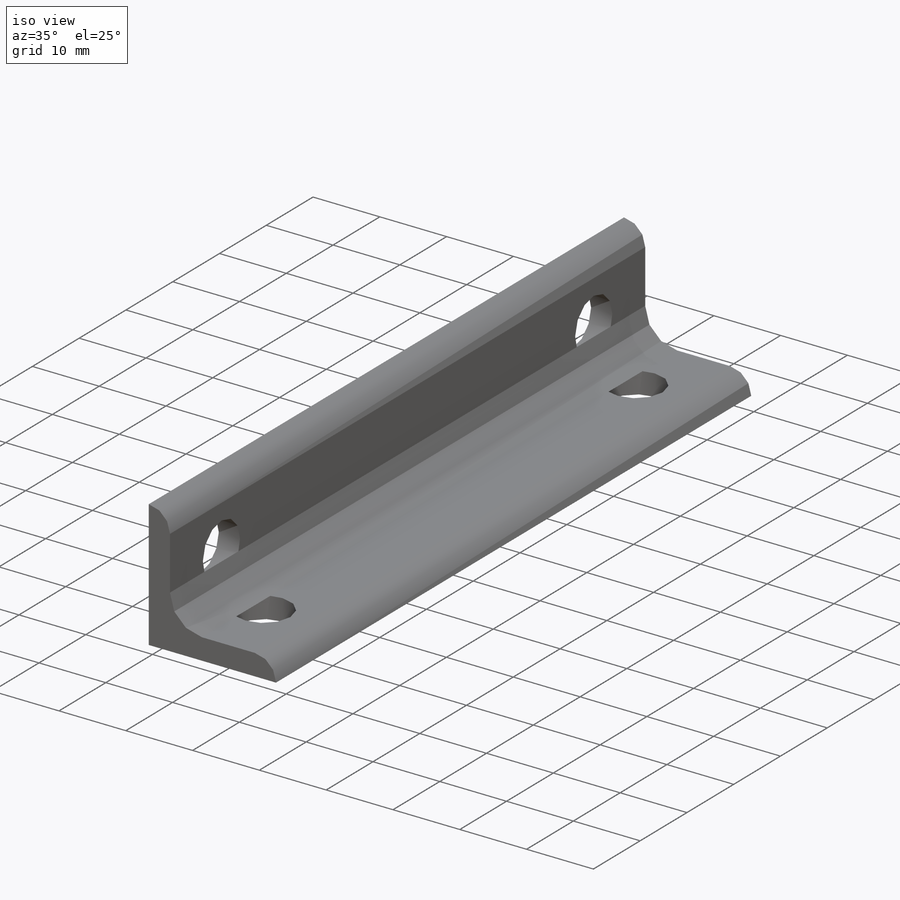
[diagram: iso view]
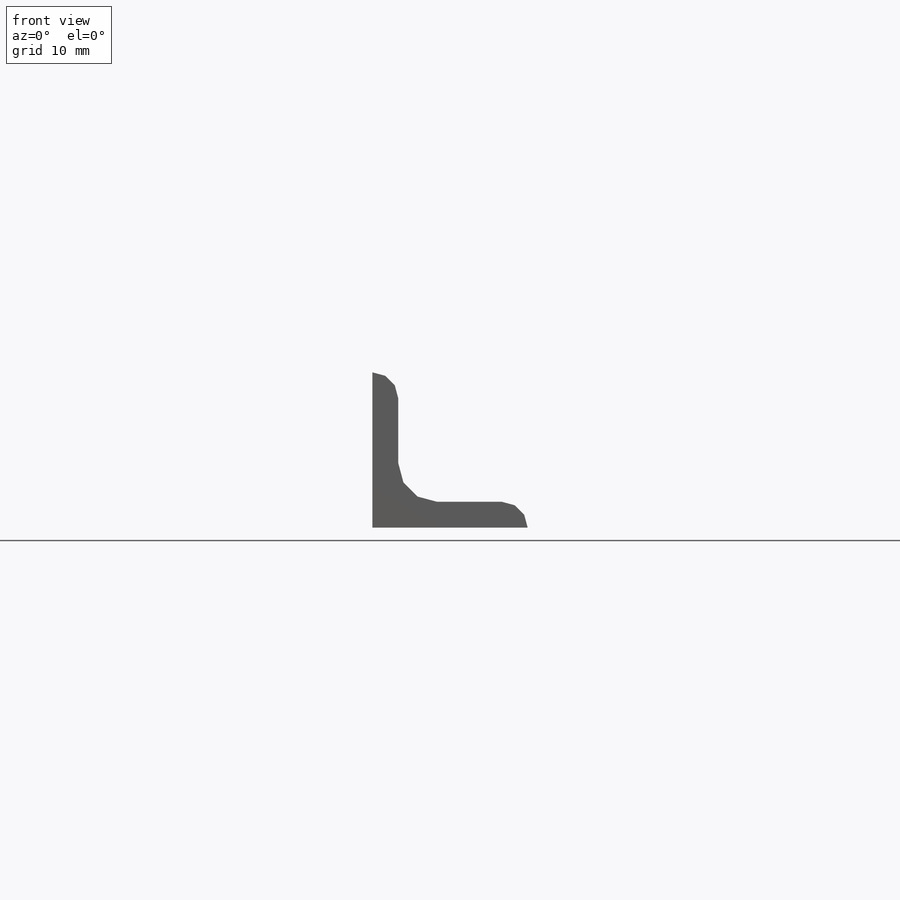
[diagram: front view]
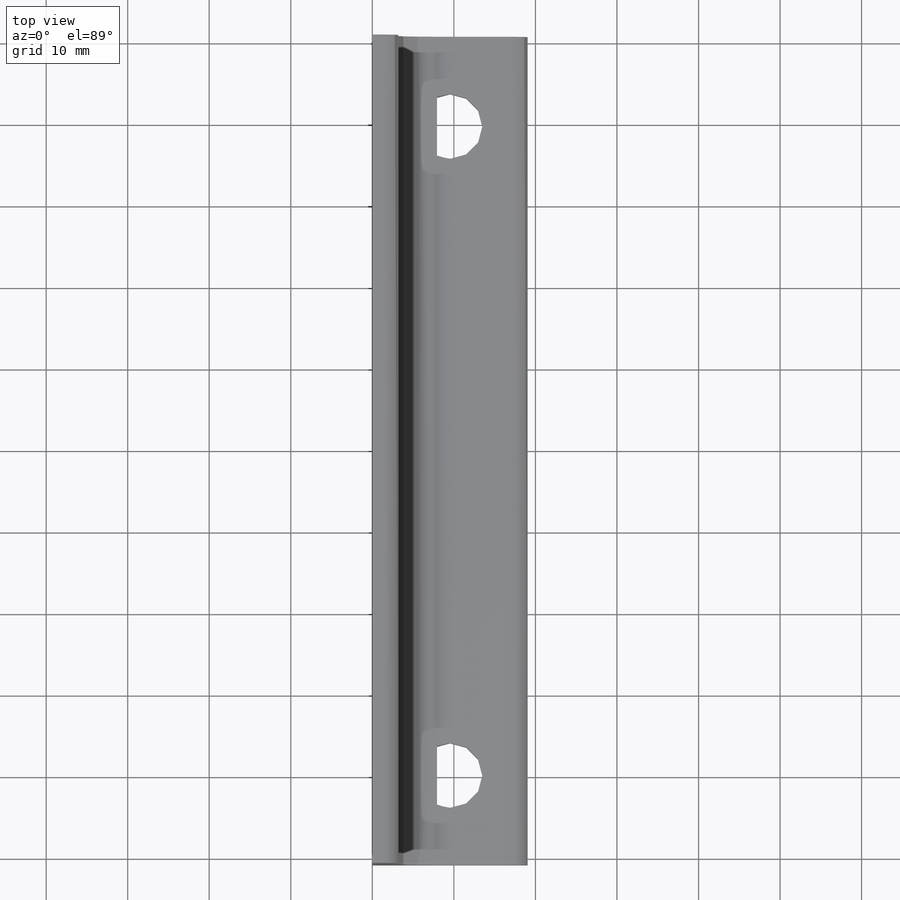
[diagram: top view]
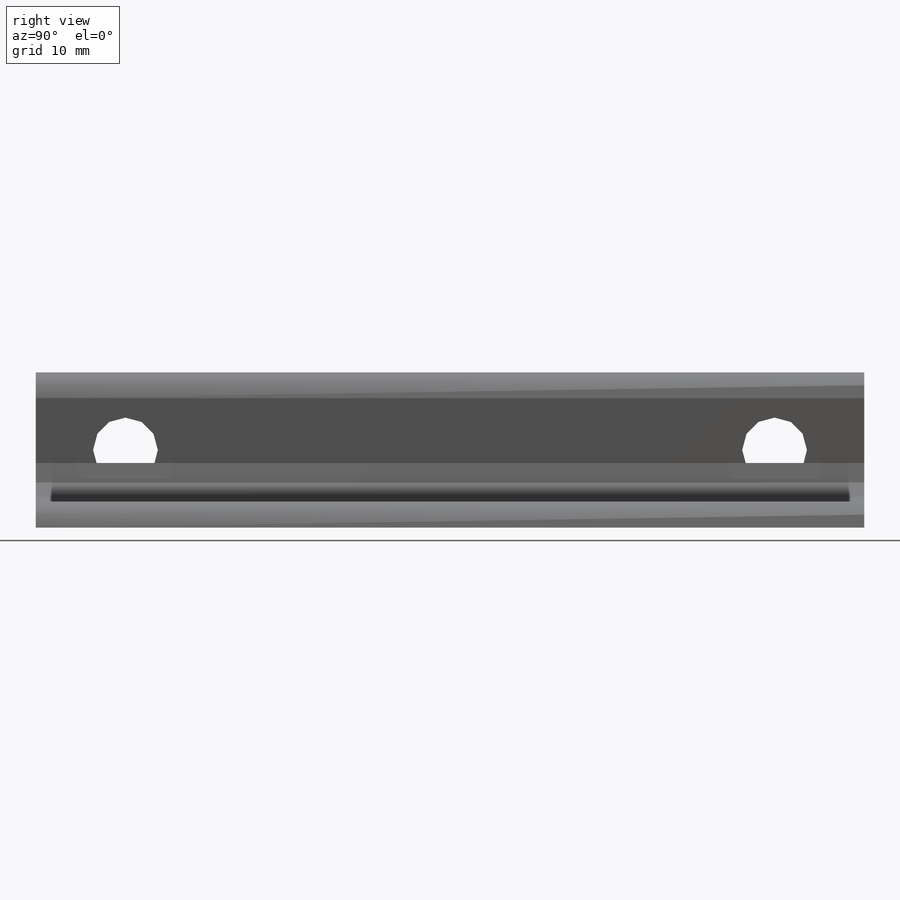
[diagram: right view]
SOLIDWORKS PART (.sldprt)
format: sldprt  version: not decoded by parser v0  size: 345,600 bytes
history: native  units: mm
features: sketch x5, plane x3, hole x2, mirror x2, material x1, extrude x1 (+8 scaffold rows collapsed)
feature tree (22):
  scaffold x8  (default folders/planes/origin — collapsed)
  material  "6063-T6"
  plane  "Plane1"
  plane  "Plane2"
  plane  "Plane3"
  sketch  "Sketch1"  dims[c1.D2=3.175mm c1.Radius_1=4.7625mm c1.Radius_2=3.175mm c1.V_leg=50.8mm c1.H_leg=50.8mm c1.Thickness=3.175mm c1.D1=3.175mm c1.D3=46.0375mm c2.V_leg=19.05mm c2.H_leg=19.05mm c2.Flat_wid=~0.00508mm c2.D3=6.35mm c2.D2=~0.00508mm]
  extrude  "BaseSteelAngle"  Depth=101.6mm Length=101.6mm
  hole  "5/16 (0.3125) Diameter Hole2"  Diameter=7.9375mm Depth=19.05mm
  sketch  "Sketch5"  dims[D1=11.0mm D2=9.525mm]
  sketch  "Sketch4"  dims[hole-wizard template sketch: 47 standard entries collapsed; hole parameters kept: c15.Hole Depth=19.05mm c15.D3=~14.816244mm c15.Drill Angle=118.0deg]
  mirror  "Mirror1"
  hole  "5/16 (0.3125) Diameter Hole3"  Diameter=7.9375mm Depth=19.05mm
  sketch  "Sketch7"  dims[D1=11.0mm D2=9.525mm]
  sketch  "Sketch6"  dims[hole-wizard template sketch: 47 standard entries collapsed; hole parameters kept: c15.Hole Depth=19.05mm c15.D3=~14.816244mm c15.Drill Angle=118.0deg]
  mirror  "Mirror2"
decode coverage: 8 of 10 modeling features carry decoded parameters
note: ~ marks probable driven/reference dimensions
note: suppression state not decoded; provenance and decode notes live in map.json
